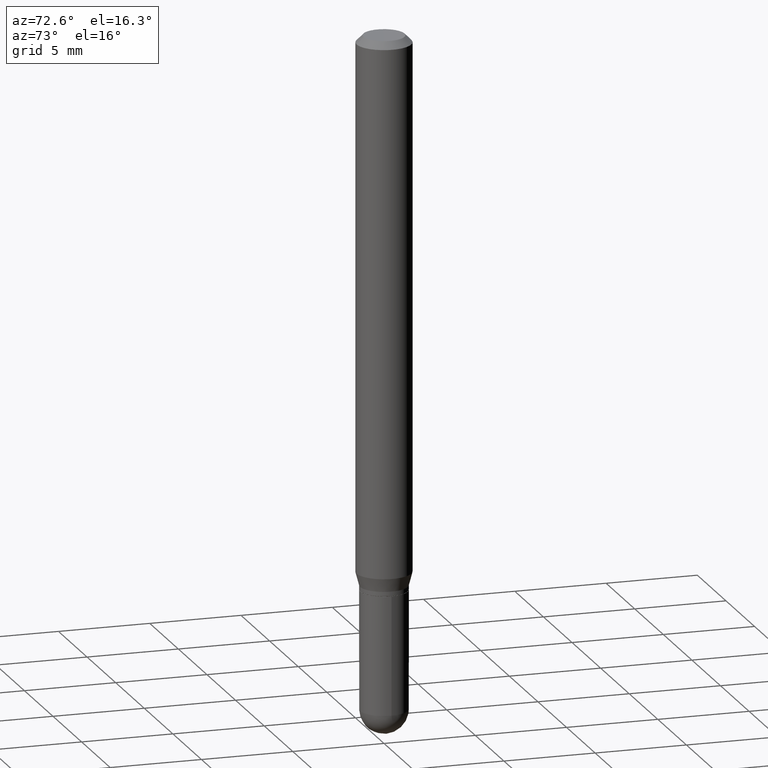
[diagram: clean part render]
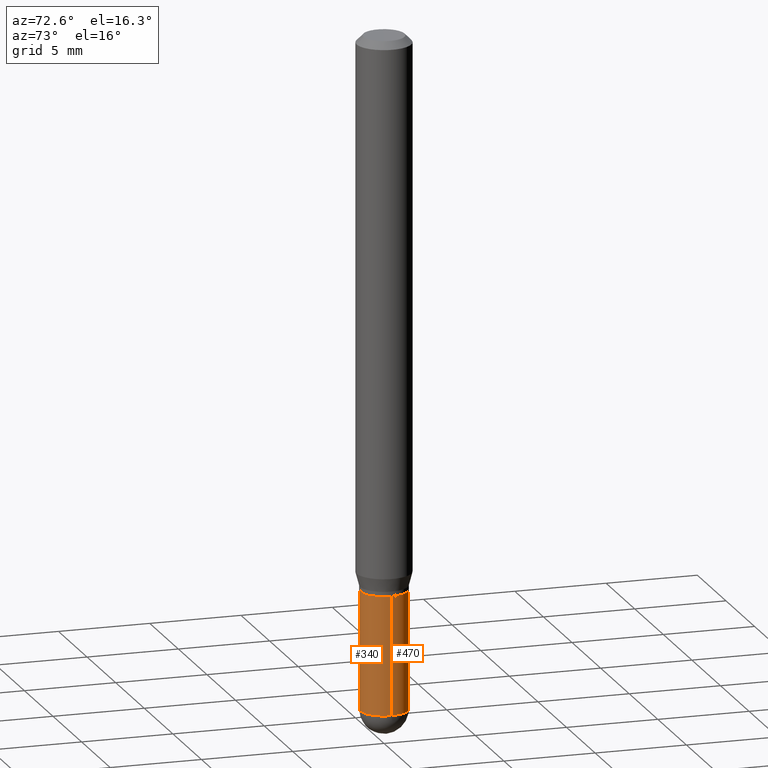
[diagram: same view with one multi-face feature highlighted, each face labeled with its STEP entity id]
A machine part, auxiliary view. The highlighted faces form ONE feature: a constant-radius fillet chain: 2 tangent blend faces with common blend radius 1.3005 mm. The faces share edges in the B-rep.
Their STEP definitions:
[1] entity #470 (Cylinder):
#9 = ORIENTED_EDGE ( 'NONE', *, *, #335, .T. ) ;
#11 = DIRECTION ( 'NONE',  ( -2.445468806185136597E-29, 3.491481338843145583E-15, 1.000000000000000000 ) ) ;
#47 = CARTESIAN_POINT ( 'NONE',  ( 3.637978807092061704E-16, 0.05119999999999488155, -1.444899999999999851 ) ) ;
#54 = DIRECTION ( 'NONE',  ( 1.000000000000000000, -6.982962677686267499E-15, 4.876176775795935232E-29 ) ) ;
#60 = DIRECTION ( 'NONE',  ( 1.000000000000000000, -6.982962677686263555E-15, 0.000000000000000000 ) ) ;
#66 = AXIS2_PLACEMENT_3D ( 'NONE', #207, #213, #371 ) ;
#83 = VERTEX_POINT ( 'NONE', #418 ) ;
#93 = CARTESIAN_POINT ( 'NONE',  ( -0.05120000000000000939, -4.234308468480308622E-15, -1.188999999999999835 ) ) ;
#143 = AXIS2_PLACEMENT_3D ( 'NONE', #403, #170, #286 ) ;
#145 = LINE ( 'NONE', #295, #414 ) ;
#148 = EDGE_CURVE ( 'NONE', #506, #308, #145, .T. ) ;
#162 = VERTEX_POINT ( 'NONE', #507 ) ;
#170 = DIRECTION ( 'NONE',  ( -2.445468806185136597E-29, 3.491481338843145583E-15, 1.000000000000000000 ) ) ;
#181 = AXIS2_PLACEMENT_3D ( 'NONE', #449, #243, #60 ) ;
#207 = CARTESIAN_POINT ( 'NONE',  ( 2.907662410554126992E-29, -4.151371311884500358E-15, -1.188999999999999835 ) ) ;
#213 = DIRECTION ( 'NONE',  ( -2.445468806185136597E-29, 3.491481338843145583E-15, 1.000000000000000000 ) ) ;
#227 = CARTESIAN_POINT ( 'NONE',  ( -0.05120000000000000939, -4.234308468480308622E-15, -1.444899999999999629 ) ) ;
#243 = DIRECTION ( 'NONE',  ( -2.445468806185136597E-29, 3.491481338843145583E-15, 1.000000000000000000 ) ) ;
#249 = EDGE_CURVE ( 'NONE', #395, #506, #451, .T. ) ;
#259 = DIRECTION ( 'NONE',  ( -2.445468806185136877E-29, 3.491481338843145188E-15, 1.000000000000000000 ) ) ;
#260 = ORIENTED_EDGE ( 'NONE', *, *, #491, .F. ) ;
#270 = FACE_OUTER_BOUND ( 'NONE', #298, .T. ) ;
#281 = LINE ( 'NONE', #287, #388 ) ;
#286 = DIRECTION ( 'NONE',  ( 1.000000000000000000, -6.982962677686263555E-15, 0.000000000000000000 ) ) ;
#287 = CARTESIAN_POINT ( 'NONE',  ( 0.05120000000000000939, -3.575276890975369471E-16, 2.496602509207519384E-30 ) ) ;
#295 = CARTESIAN_POINT ( 'NONE',  ( -0.05120000000000000939, 3.637978807091713619E-16, -2.518494766210512278E-30 ) ) ;
#298 = EDGE_LOOP ( 'NONE', ( #439, #498, #260, #307, #9 ) ) ;
#307 = ORIENTED_EDGE ( 'NONE', *, *, #493, .F. ) ;
#308 = VERTEX_POINT ( 'NONE', #93 ) ;
#335 = EDGE_CURVE ( 'NONE', #83, #395, #415, .T. ) ;
#337 = CIRCLE ( 'NONE', #66, 0.05120000000000000939 ) ;
#366 = CYLINDRICAL_SURFACE ( 'NONE', #442, 0.05120000000000000939 ) ;
#371 = DIRECTION ( 'NONE',  ( 1.000000000000000000, -6.982962677686263555E-15, 0.000000000000000000 ) ) ;
#388 = VECTOR ( 'NONE', #455, 39.37007874015748143 ) ;
#395 = VERTEX_POINT ( 'NONE', #47 ) ;
#400 = CARTESIAN_POINT ( 'NONE',  ( 0.000000000000000000, 0.000000000000000000, 0.000000000000000000 ) ) ;
#403 = CARTESIAN_POINT ( 'NONE',  ( 3.533457878056902611E-29, -5.044841386494460595E-15, -1.444899999999999629 ) ) ;
#414 = VECTOR ( 'NONE', #259, 39.37007874015748143 ) ;
#415 = CIRCLE ( 'NONE', #181, 0.05120000000000000939 ) ;
#418 = CARTESIAN_POINT ( 'NONE',  ( 0.05120000000000000939, -4.955634038287017424E-15, -1.444899999999999629 ) ) ;
#439 = ORIENTED_EDGE ( 'NONE', *, *, #249, .T. ) ;
#442 = AXIS2_PLACEMENT_3D ( 'NONE', #400, #11, #54 ) ;
#449 = CARTESIAN_POINT ( 'NONE',  ( 3.533457878056902611E-29, -5.044841386494460595E-15, -1.444899999999999629 ) ) ;
#451 = CIRCLE ( 'NONE', #143, 0.05120000000000000939 ) ;
#455 = DIRECTION ( 'NONE',  ( -2.445468806185136877E-29, 3.491481338843145188E-15, 1.000000000000000000 ) ) ;
#470 = ADVANCED_FACE ( 'NONE', ( #270 ), #366, .T. ) ;
#491 = EDGE_CURVE ( 'NONE', #162, #308, #337, .T. ) ;
#493 = EDGE_CURVE ( 'NONE', #83, #162, #281, .T. ) ;
#498 = ORIENTED_EDGE ( 'NONE', *, *, #148, .T. ) ;
#506 = VERTEX_POINT ( 'NONE', #227 ) ;
#507 = CARTESIAN_POINT ( 'NONE',  ( 0.05120000000000000939, -4.508899000982036911E-15, -1.188999999999999835 ) ) ;
[2] entity #340 (Cylinder):
#1 = CARTESIAN_POINT ( 'NONE',  ( 3.533457878056902611E-29, -5.044841386494460595E-15, -1.444899999999999629 ) ) ;
#17 = EDGE_CURVE ( 'NONE', #308, #162, #155, .T. ) ;
#25 = DIRECTION ( 'NONE',  ( -2.445468806185136597E-29, 3.491481338843145583E-15, 1.000000000000000000 ) ) ;
#65 = AXIS2_PLACEMENT_3D ( 'NONE', #404, #25, #251 ) ;
#79 = ORIENTED_EDGE ( 'NONE', *, *, #115, .T. ) ;
#83 = VERTEX_POINT ( 'NONE', #418 ) ;
#93 = CARTESIAN_POINT ( 'NONE',  ( -0.05120000000000000939, -4.234308468480308622E-15, -1.188999999999999835 ) ) ;
#94 = AXIS2_PLACEMENT_3D ( 'NONE', #413, #106, #379 ) ;
#101 = EDGE_LOOP ( 'NONE', ( #268, #192, #79, #285, #481 ) ) ;
#106 = DIRECTION ( 'NONE',  ( -2.445468806185136597E-29, 3.491481338843145583E-15, 1.000000000000000000 ) ) ;
#115 = EDGE_CURVE ( 'NONE', #215, #83, #216, .T. ) ;
#145 = LINE ( 'NONE', #295, #414 ) ;
#148 = EDGE_CURVE ( 'NONE', #506, #308, #145, .T. ) ;
#153 = DIRECTION ( 'NONE',  ( 1.000000000000000000, -6.982962677686263555E-15, 0.000000000000000000 ) ) ;
#155 = CIRCLE ( 'NONE', #65, 0.05120000000000000939 ) ;
#162 = VERTEX_POINT ( 'NONE', #507 ) ;
#175 = DIRECTION ( 'NONE',  ( 1.000000000000000000, -6.982962677686267499E-15, 4.876176775795935232E-29 ) ) ;
#192 = ORIENTED_EDGE ( 'NONE', *, *, #448, .T. ) ;
#193 = DIRECTION ( 'NONE',  ( -2.445468806185136597E-29, 3.491481338843145583E-15, 1.000000000000000000 ) ) ;
#215 = VERTEX_POINT ( 'NONE', #239 ) ;
#216 = CIRCLE ( 'NONE', #94, 0.05120000000000000939 ) ;
#222 = DIRECTION ( 'NONE',  ( -2.445468806185136597E-29, 3.491481338843145583E-15, 1.000000000000000000 ) ) ;
#227 = CARTESIAN_POINT ( 'NONE',  ( -0.05120000000000000939, -4.234308468480308622E-15, -1.444899999999999629 ) ) ;
#239 = CARTESIAN_POINT ( 'NONE',  ( -3.575276890975010539E-16, -0.05120000000000499152, -1.444899999999999407 ) ) ;
#247 = CYLINDRICAL_SURFACE ( 'NONE', #301, 0.05120000000000000939 ) ;
#251 = DIRECTION ( 'NONE',  ( 1.000000000000000000, -6.982962677686263555E-15, 0.000000000000000000 ) ) ;
#259 = DIRECTION ( 'NONE',  ( -2.445468806185136877E-29, 3.491481338843145188E-15, 1.000000000000000000 ) ) ;
#268 = ORIENTED_EDGE ( 'NONE', *, *, #148, .F. ) ;
#281 = LINE ( 'NONE', #287, #388 ) ;
#283 = FACE_OUTER_BOUND ( 'NONE', #101, .T. ) ;
#285 = ORIENTED_EDGE ( 'NONE', *, *, #493, .T. ) ;
#287 = CARTESIAN_POINT ( 'NONE',  ( 0.05120000000000000939, -3.575276890975369471E-16, 2.496602509207519384E-30 ) ) ;
#295 = CARTESIAN_POINT ( 'NONE',  ( -0.05120000000000000939, 3.637978807091713619E-16, -2.518494766210512278E-30 ) ) ;
#301 = AXIS2_PLACEMENT_3D ( 'NONE', #416, #222, #175 ) ;
#308 = VERTEX_POINT ( 'NONE', #93 ) ;
#328 = CIRCLE ( 'NONE', #485, 0.05120000000000000939 ) ;
#340 = ADVANCED_FACE ( 'NONE', ( #283 ), #247, .T. ) ;
#379 = DIRECTION ( 'NONE',  ( 1.000000000000000000, -6.982962677686263555E-15, 0.000000000000000000 ) ) ;
#388 = VECTOR ( 'NONE', #455, 39.37007874015748143 ) ;
#404 = CARTESIAN_POINT ( 'NONE',  ( 2.907662410554126992E-29, -4.151371311884500358E-15, -1.188999999999999835 ) ) ;
#413 = CARTESIAN_POINT ( 'NONE',  ( 3.533457878056902611E-29, -5.044841386494460595E-15, -1.444899999999999629 ) ) ;
#414 = VECTOR ( 'NONE', #259, 39.37007874015748143 ) ;
#416 = CARTESIAN_POINT ( 'NONE',  ( 0.000000000000000000, 0.000000000000000000, 0.000000000000000000 ) ) ;
#418 = CARTESIAN_POINT ( 'NONE',  ( 0.05120000000000000939, -4.955634038287017424E-15, -1.444899999999999629 ) ) ;
#448 = EDGE_CURVE ( 'NONE', #506, #215, #328, .T. ) ;
#455 = DIRECTION ( 'NONE',  ( -2.445468806185136877E-29, 3.491481338843145188E-15, 1.000000000000000000 ) ) ;
#481 = ORIENTED_EDGE ( 'NONE', *, *, #17, .F. ) ;
#485 = AXIS2_PLACEMENT_3D ( 'NONE', #1, #193, #153 ) ;
#493 = EDGE_CURVE ( 'NONE', #83, #162, #281, .T. ) ;
#506 = VERTEX_POINT ( 'NONE', #227 ) ;
#507 = CARTESIAN_POINT ( 'NONE',  ( 0.05120000000000000939, -4.508899000982036911E-15, -1.188999999999999835 ) ) ;